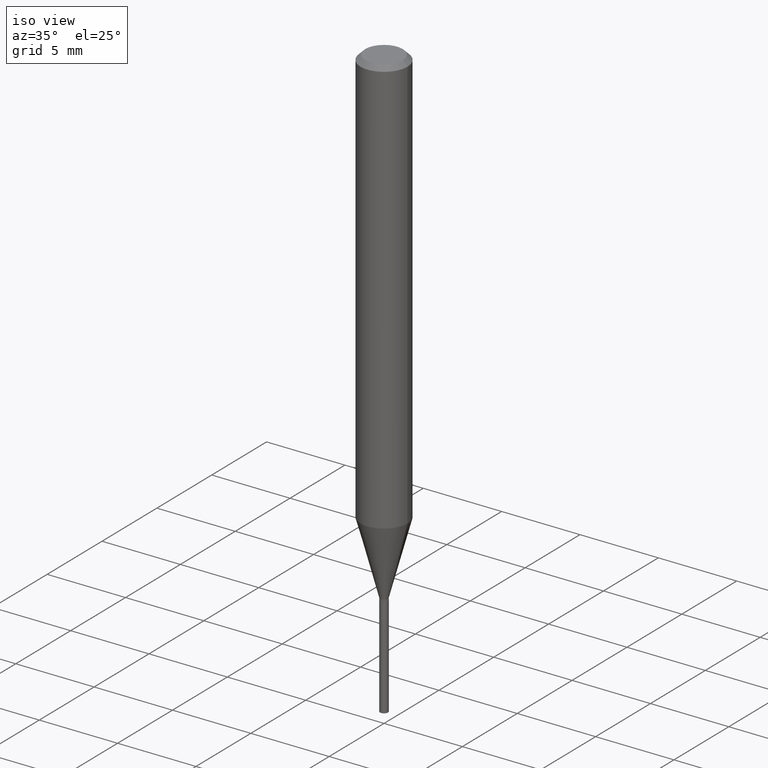
[diagram: clean part render]
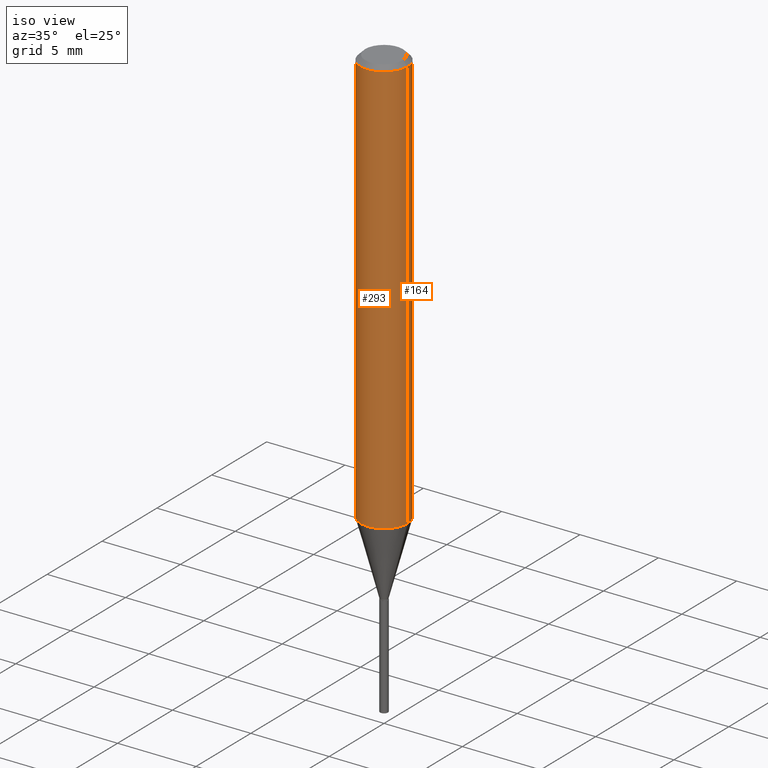
[diagram: same view with one multi-face feature highlighted, each face labeled with its STEP entity id]
A machine part, iso view. The highlighted faces form ONE feature: a constant-radius fillet chain: 2 tangent blend faces with common blend radius 1.4999 mm. The faces share edges in the B-rep.
Their STEP definitions:
[1] entity #293 (Cylinder):
#15 = CARTESIAN_POINT ( 'NONE',  ( -0.05904999999999999832, -1.432387725473137872E-15, -0.01181000000000007044 ) ) ;
#25 = DIRECTION ( 'NONE',  ( 1.000000000000000000, -6.982962677686265133E-15, 0.000000000000000000 ) ) ;
#26 = EDGE_CURVE ( 'NONE', #109, #225, #207, .T. ) ;
#43 = FACE_OUTER_BOUND ( 'NONE', #260, .T. ) ;
#62 = CARTESIAN_POINT ( 'NONE',  ( 0.05905000000000006771, -4.123439461173745257E-16, 2.879382386107503723E-30 ) ) ;
#100 = LINE ( 'NONE', #394, #409 ) ;
#102 = EDGE_CURVE ( 'NONE', #109, #302, #100, .T. ) ;
#104 = DIRECTION ( 'NONE',  ( -2.445468806185136877E-29, 3.491481338843145188E-15, 1.000000000000000000 ) ) ;
#107 = AXIS2_PLACEMENT_3D ( 'NONE', #481, #391, #25 ) ;
#109 = VERTEX_POINT ( 'NONE', #294 ) ;
#124 = DIRECTION ( 'NONE',  ( 1.000000000000000000, -6.982962677686266711E-15, 0.000000000000000000 ) ) ;
#125 = EDGE_CURVE ( 'NONE', #225, #216, #403, .T. ) ;
#141 = DIRECTION ( 'NONE',  ( -2.445468806185136877E-29, 3.491481338843145188E-15, 1.000000000000000000 ) ) ;
#153 = ORIENTED_EDGE ( 'NONE', *, *, #26, .T. ) ;
#154 = CARTESIAN_POINT ( 'NONE',  ( 0.05905000000000013016, -4.075035973384593498E-15, -1.049036690106097236 ) ) ;
#196 = DIRECTION ( 'NONE',  ( 1.000000000000000000, -6.982962677686266711E-15, 4.876176775795936353E-29 ) ) ;
#202 = CIRCLE ( 'NONE', #466, 0.05904999999999999832 ) ;
#207 = CIRCLE ( 'NONE', #107, 0.05905000000000013016 ) ;
#216 = VERTEX_POINT ( 'NONE', #412 ) ;
#225 = VERTEX_POINT ( 'NONE', #154 ) ;
#230 = ORIENTED_EDGE ( 'NONE', *, *, #125, .T. ) ;
#257 = ORIENTED_EDGE ( 'NONE', *, *, #395, .F. ) ;
#260 = EDGE_LOOP ( 'NONE', ( #347, #153, #230, #257 ) ) ;
#277 = CARTESIAN_POINT ( 'NONE',  ( 2.888098660104663766E-31, -4.123439461173779647E-17, -0.01181000000000007044 ) ) ;
#281 = AXIS2_PLACEMENT_3D ( 'NONE', #463, #353, #196 ) ;
#288 = VECTOR ( 'NONE', #104, 39.37007874015748143 ) ;
#293 = ADVANCED_FACE ( 'NONE', ( #43 ), #310, .T. ) ;
#294 = CARTESIAN_POINT ( 'NONE',  ( -0.05905000000000013016, -3.243116541800878691E-15, -1.049036690106097236 ) ) ;
#302 = VERTEX_POINT ( 'NONE', #15 ) ;
#308 = DIRECTION ( 'NONE',  ( -2.445468806185136597E-29, 3.491481338843145583E-15, 1.000000000000000000 ) ) ;
#310 = CYLINDRICAL_SURFACE ( 'NONE', #281, 0.05905000000000006771 ) ;
#347 = ORIENTED_EDGE ( 'NONE', *, *, #102, .F. ) ;
#353 = DIRECTION ( 'NONE',  ( -2.445468806185136597E-29, 3.491481338843145583E-15, 1.000000000000000000 ) ) ;
#391 = DIRECTION ( 'NONE',  ( -2.445468806185136597E-29, 3.491481338843145583E-15, 1.000000000000000000 ) ) ;
#394 = CARTESIAN_POINT ( 'NONE',  ( -0.05905000000000006771, 4.195754854663396409E-16, -2.904631170795525045E-30 ) ) ;
#395 = EDGE_CURVE ( 'NONE', #302, #216, #202, .T. ) ;
#403 = LINE ( 'NONE', #62, #288 ) ;
#409 = VECTOR ( 'NONE', #141, 39.37007874015748143 ) ;
#412 = CARTESIAN_POINT ( 'NONE',  ( 0.05904999999999999832, -4.535783407291118600E-16, -0.01181000000000007044 ) ) ;
#463 = CARTESIAN_POINT ( 'NONE',  ( 0.000000000000000000, 0.000000000000000000, 0.000000000000000000 ) ) ;
#466 = AXIS2_PLACEMENT_3D ( 'NONE', #277, #308, #124 ) ;
#481 = CARTESIAN_POINT ( 'NONE',  ( 2.565386502198165089E-29, -3.662692027267218578E-15, -1.049036690106097236 ) ) ;
[2] entity #164 (Cylinder):
#2 = CARTESIAN_POINT ( 'NONE',  ( 0.000000000000000000, 0.000000000000000000, 0.000000000000000000 ) ) ;
#15 = CARTESIAN_POINT ( 'NONE',  ( -0.05904999999999999832, -1.432387725473137872E-15, -0.01181000000000007044 ) ) ;
#31 = DIRECTION ( 'NONE',  ( -2.445468806185136597E-29, 3.491481338843145583E-15, 1.000000000000000000 ) ) ;
#33 = AXIS2_PLACEMENT_3D ( 'NONE', #51, #249, #199 ) ;
#34 = ORIENTED_EDGE ( 'NONE', *, *, #102, .T. ) ;
#51 = CARTESIAN_POINT ( 'NONE',  ( 2.565386502198165089E-29, -3.662692027267218578E-15, -1.049036690106097236 ) ) ;
#62 = CARTESIAN_POINT ( 'NONE',  ( 0.05905000000000006771, -4.123439461173745257E-16, 2.879382386107503723E-30 ) ) ;
#64 = EDGE_CURVE ( 'NONE', #225, #109, #384, .T. ) ;
#100 = LINE ( 'NONE', #394, #409 ) ;
#102 = EDGE_CURVE ( 'NONE', #109, #302, #100, .T. ) ;
#104 = DIRECTION ( 'NONE',  ( -2.445468806185136877E-29, 3.491481338843145188E-15, 1.000000000000000000 ) ) ;
#109 = VERTEX_POINT ( 'NONE', #294 ) ;
#113 = DIRECTION ( 'NONE',  ( 1.000000000000000000, -6.982962677686266711E-15, 4.876176775795936353E-29 ) ) ;
#125 = EDGE_CURVE ( 'NONE', #225, #216, #403, .T. ) ;
#137 = AXIS2_PLACEMENT_3D ( 'NONE', #335, #31, #262 ) ;
#141 = DIRECTION ( 'NONE',  ( -2.445468806185136877E-29, 3.491481338843145188E-15, 1.000000000000000000 ) ) ;
#152 = EDGE_CURVE ( 'NONE', #216, #302, #373, .T. ) ;
#154 = CARTESIAN_POINT ( 'NONE',  ( 0.05905000000000013016, -4.075035973384593498E-15, -1.049036690106097236 ) ) ;
#164 = ADVANCED_FACE ( 'NONE', ( #415 ), #483, .T. ) ;
#199 = DIRECTION ( 'NONE',  ( 1.000000000000000000, -6.982962677686265133E-15, 0.000000000000000000 ) ) ;
#216 = VERTEX_POINT ( 'NONE', #412 ) ;
#225 = VERTEX_POINT ( 'NONE', #154 ) ;
#249 = DIRECTION ( 'NONE',  ( -2.445468806185136597E-29, 3.491481338843145583E-15, 1.000000000000000000 ) ) ;
#262 = DIRECTION ( 'NONE',  ( 1.000000000000000000, -6.982962677686266711E-15, 0.000000000000000000 ) ) ;
#269 = EDGE_LOOP ( 'NONE', ( #275, #34, #382, #428 ) ) ;
#275 = ORIENTED_EDGE ( 'NONE', *, *, #64, .T. ) ;
#288 = VECTOR ( 'NONE', #104, 39.37007874015748143 ) ;
#294 = CARTESIAN_POINT ( 'NONE',  ( -0.05905000000000013016, -3.243116541800878691E-15, -1.049036690106097236 ) ) ;
#302 = VERTEX_POINT ( 'NONE', #15 ) ;
#335 = CARTESIAN_POINT ( 'NONE',  ( 2.888098660104663766E-31, -4.123439461173779647E-17, -0.01181000000000007044 ) ) ;
#373 = CIRCLE ( 'NONE', #137, 0.05904999999999999832 ) ;
#382 = ORIENTED_EDGE ( 'NONE', *, *, #152, .F. ) ;
#384 = CIRCLE ( 'NONE', #33, 0.05905000000000013016 ) ;
#394 = CARTESIAN_POINT ( 'NONE',  ( -0.05905000000000006771, 4.195754854663396409E-16, -2.904631170795525045E-30 ) ) ;
#403 = LINE ( 'NONE', #62, #288 ) ;
#409 = VECTOR ( 'NONE', #141, 39.37007874015748143 ) ;
#412 = CARTESIAN_POINT ( 'NONE',  ( 0.05904999999999999832, -4.535783407291118600E-16, -0.01181000000000007044 ) ) ;
#415 = FACE_OUTER_BOUND ( 'NONE', #269, .T. ) ;
#428 = ORIENTED_EDGE ( 'NONE', *, *, #125, .F. ) ;
#457 = AXIS2_PLACEMENT_3D ( 'NONE', #2, #459, #113 ) ;
#459 = DIRECTION ( 'NONE',  ( -2.445468806185136597E-29, 3.491481338843145583E-15, 1.000000000000000000 ) ) ;
#483 = CYLINDRICAL_SURFACE ( 'NONE', #457, 0.05905000000000006771 ) ;